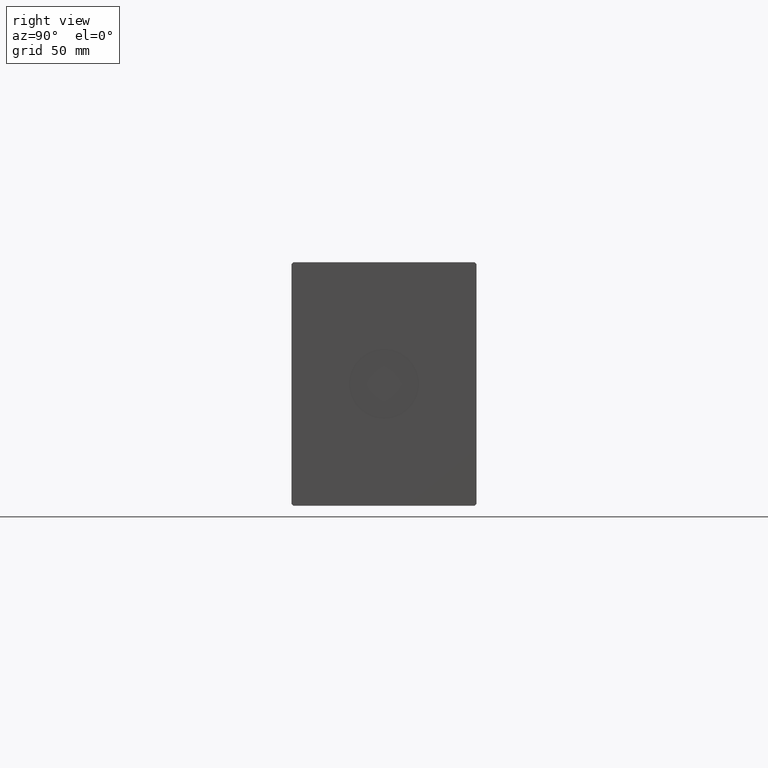
[diagram: clean part render]
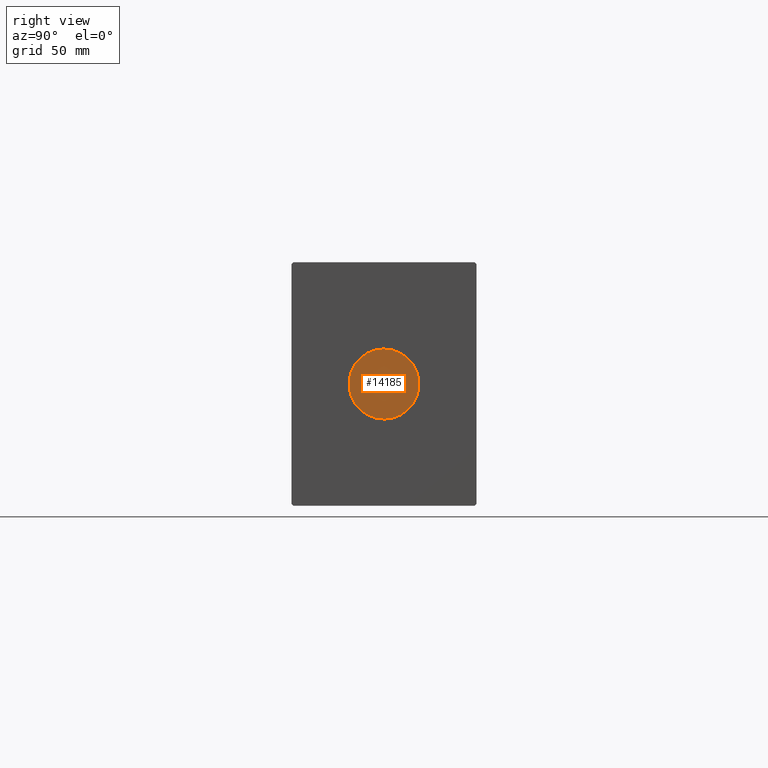
[diagram: same view with one face highlighted and labeled with its STEP entity id]
A machine part, right view. The second image highlights one B-rep face of the part: STEP entity #14185.
In plain terms, the highlighted planar face has unit normal (1, 0, 0).
Its self-contained STEP definition (entity closure, byte-faithful):
#100 = AXIS2_PLACEMENT_3D ( 'NONE', #18005, #7017, #1025 ) ;
#1025 = DIRECTION ( 'NONE',  ( 0.000000000000000000, 0.000000000000000000, -1.000000000000000000 ) ) ;
#2258 = DIRECTION ( 'NONE',  ( 0.000000000000000000, 0.000000000000000000, -1.000000000000000000 ) ) ;
#2610 = EDGE_LOOP ( 'NONE', ( #10370, #37132 ) ) ;
#4805 = VERTEX_POINT ( 'NONE', #15283 ) ;
#7017 = DIRECTION ( 'NONE',  ( 1.000000000000000000, 0.000000000000000000, 0.000000000000000000 ) ) ;
#8075 = CARTESIAN_POINT ( 'NONE',  ( 340.8000000000000682, 0.000000000000000000, -18.00000000000000000 ) ) ;
#9078 = DIRECTION ( 'NONE',  ( 1.000000000000000000, 0.000000000000000000, 0.000000000000000000 ) ) ;
#10352 = CIRCLE ( 'NONE', #11704, 18.00000000000000000 ) ;
#10370 = ORIENTED_EDGE ( 'NONE', *, *, #32571, .T. ) ;
#10626 = PLANE ( 'NONE',  #100 ) ;
#11704 = AXIS2_PLACEMENT_3D ( 'NONE', #20229, #39800, #33812 ) ;
#14185 = ADVANCED_FACE ( 'NONE', ( #30201 ), #10626, .T. ) ;
#15283 = CARTESIAN_POINT ( 'NONE',  ( 340.8000000000000682, 2.204364238465235428E-15, 18.00000000000000000 ) ) ;
#17754 = EDGE_CURVE ( 'NONE', #4805, #22785, #31454, .T. ) ;
#18005 = CARTESIAN_POINT ( 'NONE',  ( 340.8000000000000682, 0.000000000000000000, 0.000000000000000000 ) ) ;
#18228 = CARTESIAN_POINT ( 'NONE',  ( 340.8000000000000682, 0.000000000000000000, 0.000000000000000000 ) ) ;
#20229 = CARTESIAN_POINT ( 'NONE',  ( 340.8000000000000682, 0.000000000000000000, 0.000000000000000000 ) ) ;
#22785 = VERTEX_POINT ( 'NONE', #8075 ) ;
#30201 = FACE_OUTER_BOUND ( 'NONE', #2610, .T. ) ;
#31454 = CIRCLE ( 'NONE', #37579, 18.00000000000000000 ) ;
#32571 = EDGE_CURVE ( 'NONE', #22785, #4805, #10352, .T. ) ;
#33812 = DIRECTION ( 'NONE',  ( 0.000000000000000000, 0.000000000000000000, -1.000000000000000000 ) ) ;
#37132 = ORIENTED_EDGE ( 'NONE', *, *, #17754, .T. ) ;
#37579 = AXIS2_PLACEMENT_3D ( 'NONE', #18228, #9078, #2258 ) ;
#39800 = DIRECTION ( 'NONE',  ( 1.000000000000000000, 0.000000000000000000, 0.000000000000000000 ) ) ;